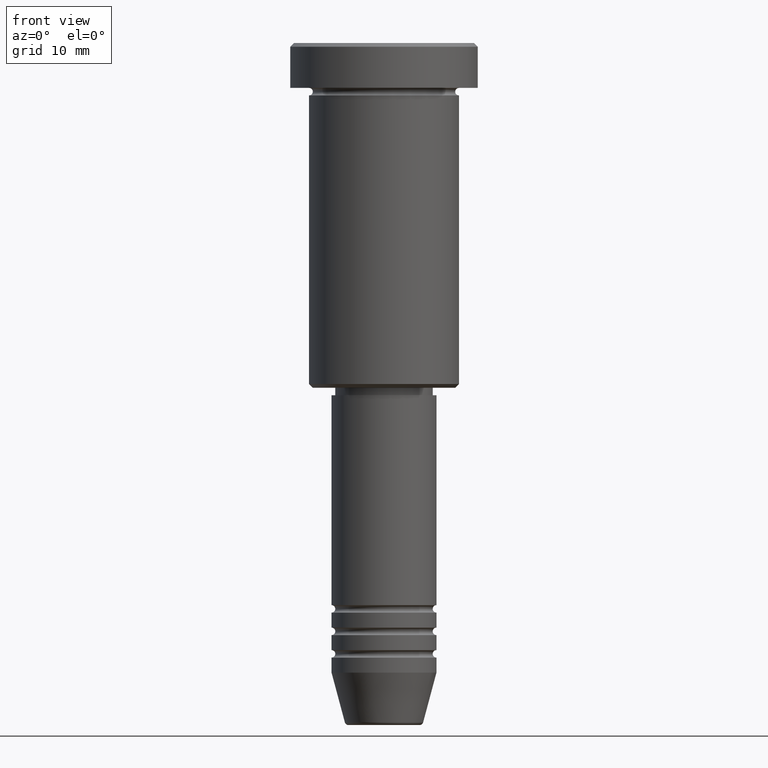
[diagram: clean part render]
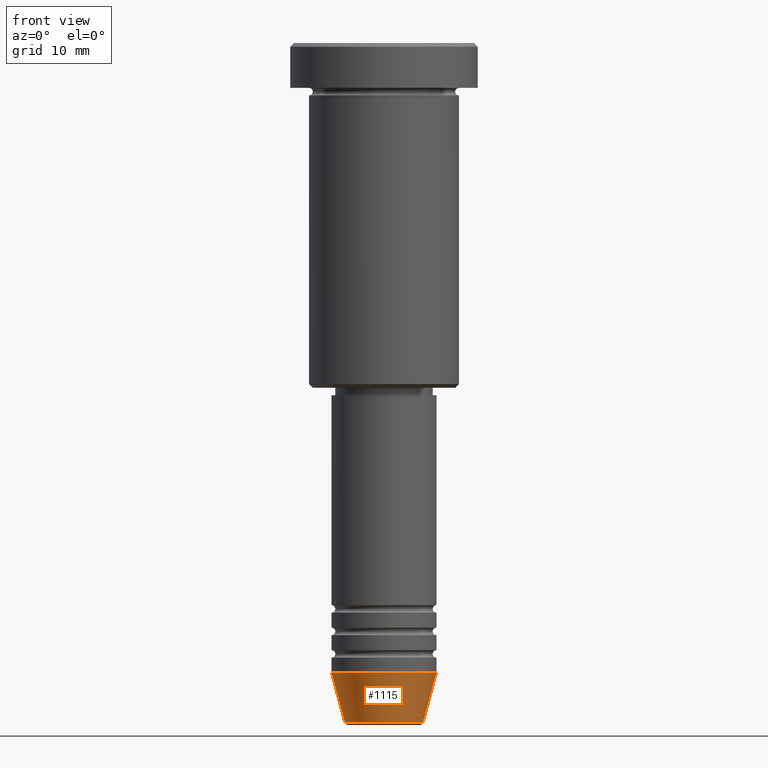
[diagram: same view with one face highlighted and labeled with its STEP entity id]
A machine part, front view. The second image highlights one B-rep face of the part: STEP entity #1115.
In plain terms, the highlighted conical surface has half-angle 15 deg.
Its self-contained STEP definition (entity closure, byte-faithful):
#88 = VECTOR ( 'NONE', #252, 1000.000000000000000 ) ;
#115 = ORIENTED_EDGE ( 'NONE', *, *, #628, .F. ) ;
#119 = EDGE_CURVE ( 'NONE', #225, #1175, #350, .T. ) ;
#196 = DIRECTION ( 'NONE',  ( -0.000000000000000000, -0.000000000000000000, 1.000000000000000000 ) ) ;
#205 = EDGE_LOOP ( 'NONE', ( #667, #1146, #1017, #115 ) ) ;
#225 = VERTEX_POINT ( 'NONE', #1126 ) ;
#252 = DIRECTION ( 'NONE',  ( -0.2588190451025214056, 3.169619151431772953E-17, 0.9659258262890680902 ) ) ;
#266 = DIRECTION ( 'NONE',  ( -0.000000000000000000, -0.000000000000000000, 1.000000000000000000 ) ) ;
#270 = CARTESIAN_POINT ( 'NONE',  ( 0.000000000000000000, 0.000000000000000000, -83.99999999999998579 ) ) ;
#330 = AXIS2_PLACEMENT_3D ( 'NONE', #270, #976, #1094 ) ;
#350 = CIRCLE ( 'NONE', #1157, 5.223655072137187716 ) ;
#437 = CARTESIAN_POINT ( 'NONE',  ( -7.000000000000000000, 8.572527594031473190E-16, -83.99999999999998579 ) ) ;
#454 = DIRECTION ( 'NONE',  ( 0.2588190451025214056, 0.000000000000000000, 0.9659258262890680902 ) ) ;
#459 = CARTESIAN_POINT ( 'NONE',  ( 7.000000000000000000, 0.000000000000000000, -83.99999999999998579 ) ) ;
#465 = CARTESIAN_POINT ( 'NONE',  ( 0.000000000000000000, 0.000000000000000000, -83.99999999999998579 ) ) ;
#469 = VERTEX_POINT ( 'NONE', #539 ) ;
#482 = CARTESIAN_POINT ( 'NONE',  ( 0.000000000000000000, 0.000000000000000000, -90.62940952255125637 ) ) ;
#539 = CARTESIAN_POINT ( 'NONE',  ( -7.000000000000000000, 8.572527594031473190E-16, -83.99999999999998579 ) ) ;
#603 = EDGE_CURVE ( 'NONE', #225, #469, #719, .T. ) ;
#626 = LINE ( 'NONE', #894, #771 ) ;
#628 = EDGE_CURVE ( 'NONE', #469, #893, #1128, .T. ) ;
#643 = FACE_OUTER_BOUND ( 'NONE', #205, .T. ) ;
#655 = EDGE_CURVE ( 'NONE', #1175, #893, #626, .T. ) ;
#667 = ORIENTED_EDGE ( 'NONE', *, *, #603, .F. ) ;
#719 = LINE ( 'NONE', #437, #88 ) ;
#740 = DIRECTION ( 'NONE',  ( 1.000000000000000000, 0.000000000000000000, 0.000000000000000000 ) ) ;
#771 = VECTOR ( 'NONE', #454, 1000.000000000000000 ) ;
#888 = DIRECTION ( 'NONE',  ( 1.000000000000000000, 0.000000000000000000, 0.000000000000000000 ) ) ;
#893 = VERTEX_POINT ( 'NONE', #459 ) ;
#894 = CARTESIAN_POINT ( 'NONE',  ( 7.000000000000000000, 0.000000000000000000, -83.99999999999998579 ) ) ;
#976 = DIRECTION ( 'NONE',  ( -0.000000000000000000, -0.000000000000000000, 1.000000000000000000 ) ) ;
#1017 = ORIENTED_EDGE ( 'NONE', *, *, #655, .T. ) ;
#1036 = CONICAL_SURFACE ( 'NONE', #1165, 7.000000000000000000, 0.2617993877991501295 ) ;
#1094 = DIRECTION ( 'NONE',  ( 1.000000000000000000, 0.000000000000000000, 0.000000000000000000 ) ) ;
#1115 = ADVANCED_FACE ( 'NONE', ( #643 ), #1036, .T. ) ;
#1126 = CARTESIAN_POINT ( 'NONE',  ( -5.223655072137187716, 7.484830028987059188E-16, -90.62940952255125637 ) ) ;
#1128 = CIRCLE ( 'NONE', #330, 7.000000000000000000 ) ;
#1138 = CARTESIAN_POINT ( 'NONE',  ( 5.223655072137187716, 0.000000000000000000, -90.62940952255125637 ) ) ;
#1146 = ORIENTED_EDGE ( 'NONE', *, *, #119, .T. ) ;
#1157 = AXIS2_PLACEMENT_3D ( 'NONE', #482, #196, #740 ) ;
#1165 = AXIS2_PLACEMENT_3D ( 'NONE', #465, #266, #888 ) ;
#1175 = VERTEX_POINT ( 'NONE', #1138 ) ;